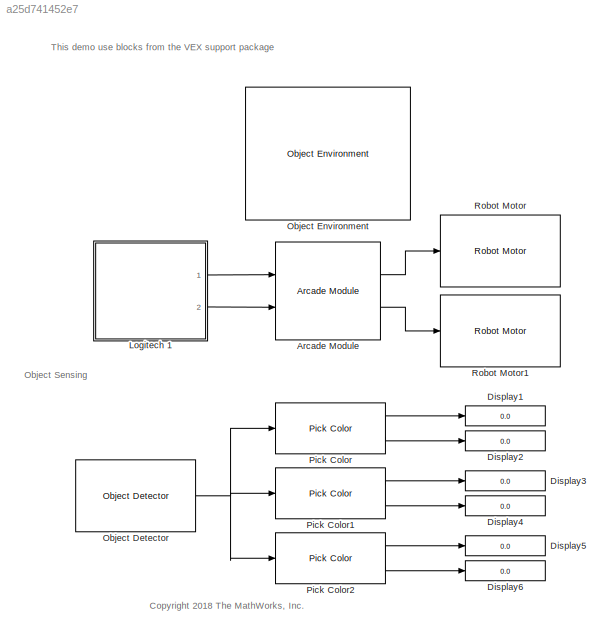
MODEL slx_a25d741452e7
KIND model
CONFIG AbsTol = auto
CONFIG EnableMultiTasking = on
CONFIG FixedStep = 0.05
CONFIG InitFcn = RPInit
CONFIG MaxStep = auto
CONFIG MinStep = auto
CONFIG RelTol = 1e-3
CONFIG SampleTimeConstraint = Unconstrained
CONFIG Solver = ode23t
CONFIG SolverName = ode23t
CONFIG StartTime = 0.0
CONFIG StopTime = inf
WORKSPACE source: mxarray member
WORKSPACE mapForSim: object (value not decoded)
WORKSPACE occGrid: robotics.BinaryOccupancyGrid (value not decoded)
BLOCK [Reference] Arcade Module  REF=vexcommonlib/Arcade Module
  Ports = [2, 2]
  SourceBlock = vexcommonlib/Arcade Module
  SourceProductBaseCode = EC_VEX_MICRO
  SourceProductName = Simulink Coder Support Package for ARM Cortex-based VEX Microcontroller
  SourceType = Arcade-2 Motors Module
BLOCK [Display] Display1
  Decimation = 1
  Ports = [1]
BLOCK [Display] Display2
  Decimation = 1
  Ports = [1]
BLOCK [Display] Display3
  Decimation = 1
  Ports = [1]
BLOCK [Display] Display4
  Decimation = 1
  Ports = [1]
BLOCK [Display] Display5
  Decimation = 1
  Ports = [1]
BLOCK [Display] Display6
  Decimation = 1
  Ports = [1]
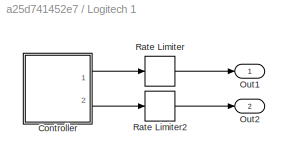
BLOCK [SubSystem] Logitech 1
  Ports = [0, 2]
  RequestExecContextInheritance = off
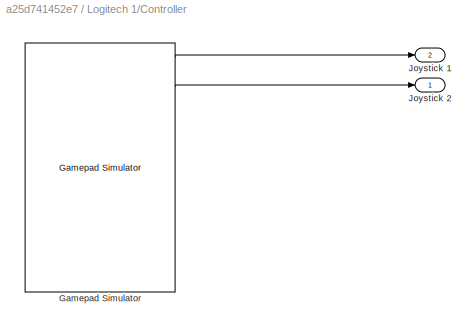
BLOCK [SubSystem] Logitech 1/Controller
  Ports = [0, 2]
  RequestExecContextInheritance = off
BLOCK [Reference] Logitech 1/Controller/Gamepad Simulator  REF=vexcommonlib/Gamepad Simulator
  Ports = [0, 16]
  SourceBlock = vexcommonlib/Gamepad Simulator
  SourceProductBaseCode = EC_VEX_MICRO
  SourceProductName = Simulink Coder Support Package for ARM Cortex-based VEX Microcontroller
  SourceType = Gamepad Simulator
BLOCK [Outport] Logitech 1/Controller/Joystick 1
  IconDisplay = Port number
  Port = 2
  VectorParamsAs1DForOutWhenUnconnected = off
BLOCK [Outport] Logitech 1/Controller/Joystick 2
  IconDisplay = Port number
  VectorParamsAs1DForOutWhenUnconnected = off
BLOCK [Outport] Logitech 1/Out1
  IconDisplay = Port number
  VectorParamsAs1DForOutWhenUnconnected = off
BLOCK [Outport] Logitech 1/Out2
  IconDisplay = Port number
  Port = 2
  VectorParamsAs1DForOutWhenUnconnected = off
BLOCK [RateLimiter] Logitech 1/Rate Limiter
  FallingSlewLimit = -1.2*127
  RisingSlewLimit = 1.2*127
  SampleTimeMode = inherited
BLOCK [RateLimiter] Logitech 1/Rate Limiter2
  FallingSlewLimit = -1.2*127
  RisingSlewLimit = 1.2*127
  SampleTimeMode = inherited
BLOCK [Reference] Object Detector  REF=RoboticsPlayground/Advanced Sensors/Object Detector
  Commented = on
  Ports = [0, 1]
  SourceBlock = RoboticsPlayground/Advanced Sensors/Object Detector
  SourceProductName = Robotics Playground
  SourceType = RP Object Sensor
BLOCK [Reference] Object Environment  REF=RoboticsPlayground/Environments/Object Environment
  Ports = []
  SourceBlock = RoboticsPlayground/Environments/Object Environment
  SourceProductName = Robotics Playground
  SourceType = RP Object Environment
BLOCK [Reference] Pick Color  REF=RoboticsPlayground/Advanced Sensors/Pick Color
  Commented = on
  Ports = [1, 2]
  SourceBlock = RoboticsPlayground/Advanced Sensors/Pick Color
  SourceProductName = Robotics Playground
  SourceType = RP Pick Color
BLOCK [Reference] Pick Color1  REF=RoboticsPlayground/Advanced Sensors/Pick Color
  Commented = on
  Ports = [1, 2]
  SourceBlock = RoboticsPlayground/Advanced Sensors/Pick Color
  SourceProductName = Robotics Playground
  SourceType = RP Pick Color
BLOCK [Reference] Pick Color2  REF=RoboticsPlayground/Advanced Sensors/Pick Color
  Commented = on
  Ports = [1, 2]
  SourceBlock = RoboticsPlayground/Advanced Sensors/Pick Color
  SourceProductName = Robotics Playground
  SourceType = RP Pick Color
BLOCK [Reference] Robot Motor  REF=RoboticsPlayground/Basic Sensors and Actuators/Robot Motor
  Ports = [1]
  SourceBlock = RoboticsPlayground/Basic Sensors and Actuators/Robot Motor
  SourceProductName = Robotics Playground
  SourceType = RP Robot Motor
BLOCK [Reference] Robot Motor1  REF=RoboticsPlayground/Basic Sensors and Actuators/Robot Motor
  Ports = [1]
  SourceBlock = RoboticsPlayground/Basic Sensors and Actuators/Robot Motor
  SourceProductName = Robotics Playground
  SourceType = RP Robot Motor
ANNOTATION (root): <copyright redacted>
ANNOTATION (root): This demo use blocks from the VEX support package
ANNOTATION (root): Object Sensing
LINE Arcade Module:1 -> Robot Motor:1
LINE Arcade Module:2 -> Robot Motor1:1
LINE Logitech 1/Controller/Gamepad Simulator:1 -> Logitech 1/Controller/Joystick 1:1
LINE Logitech 1/Controller/Gamepad Simulator:3 -> Logitech 1/Controller/Joystick 2:1
LINE Logitech 1/Controller:1 -> Logitech 1/Rate Limiter:1
LINE Logitech 1/Controller:2 -> Logitech 1/Rate Limiter2:1
LINE Logitech 1/Rate Limiter2:1 -> Logitech 1/Out2:1
LINE Logitech 1/Rate Limiter:1 -> Logitech 1/Out1:1
LINE Logitech 1:1 -> Arcade Module:1
LINE Logitech 1:2 -> Arcade Module:2
NET Object Detector:1 -> Pick Color1:1, Pick Color2:1, Pick Color:1
LINE Pick Color1:1 -> Display3:1
LINE Pick Color1:2 -> Display4:1
LINE Pick Color2:1 -> Display5:1
LINE Pick Color2:2 -> Display6:1
LINE Pick Color:1 -> Display1:1
LINE Pick Color:2 -> Display2:1
note: NET lines group one-source signal fan-out (src -> all destinations, sorted); 1:1 wires keep LINE
